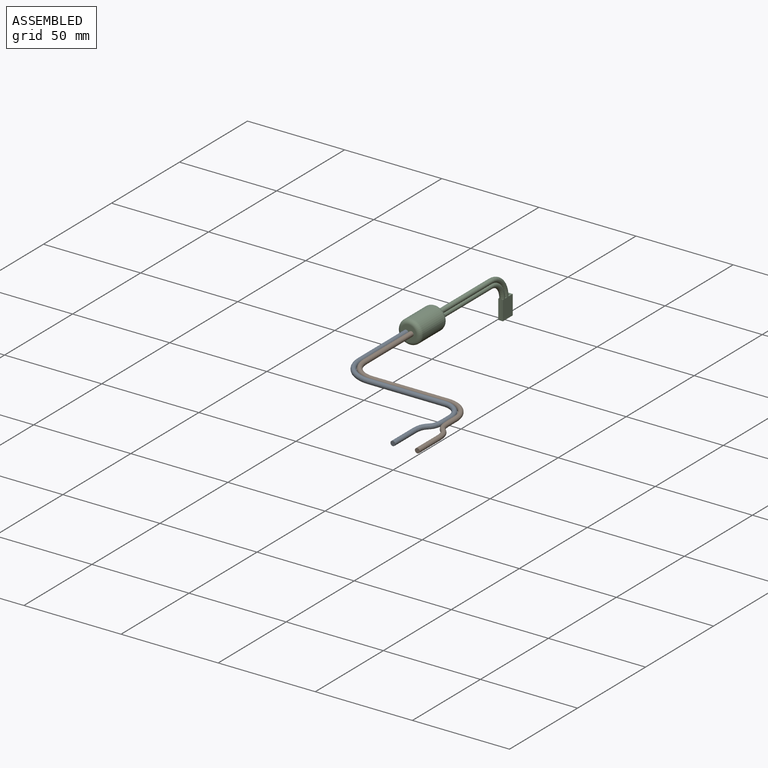
[diagram: assembled view]
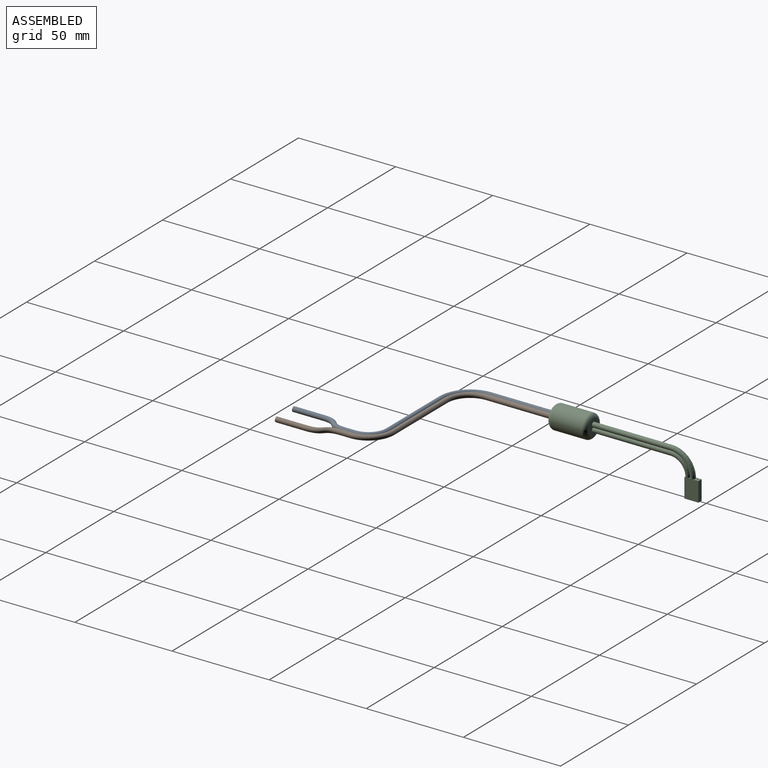
[diagram: assembled view, second angle]
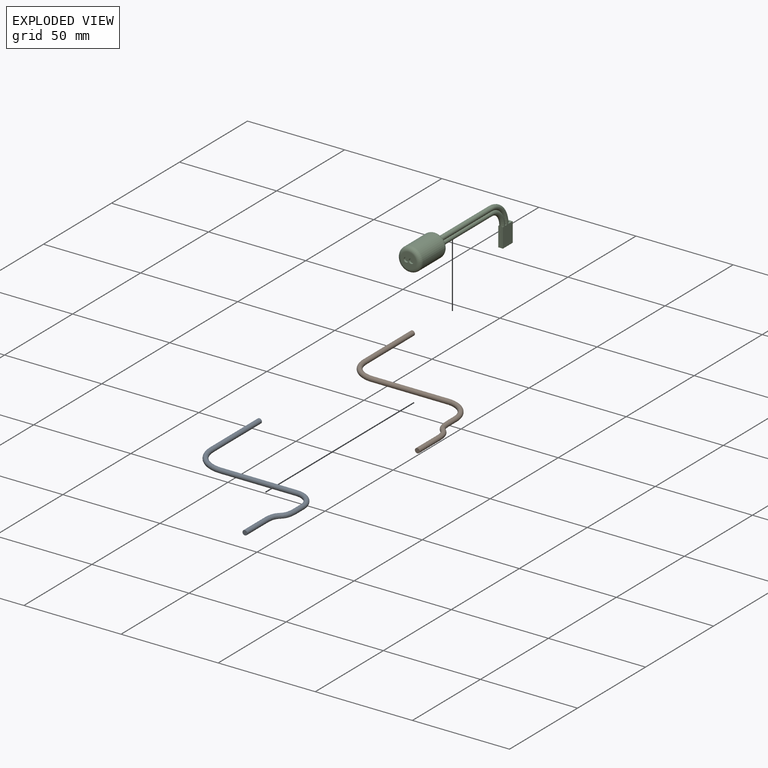
[diagram: exploded view]
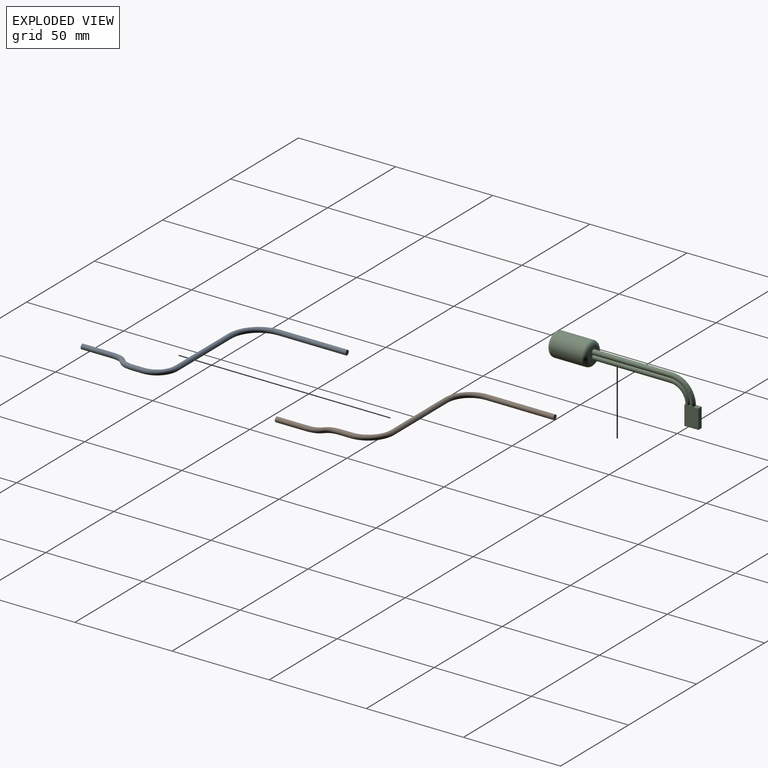
[diagram: exploded view, second angle]
ASSEMBLY  parts=3 mates=2
PART A: 9 faces, bbox 69.1x95x5.5 mm
  f0: plane 2.5x2.5mm, normal (0,1,0), area 4.9mm2, adj f2
  f1: plane 2.5x2.5mm, normal (0,-1,0), area 4.9mm2, adj f8
  f2: cylinder r=1.25mm len=35mm, axis (0,-1,0), area 274.9mm2, adj f0,f3
  f3: torus R=15mm, axis (0,0,1), area 185.1mm2, adj f2,f4
  f4: cylinder r=1.25mm len=39mm, axis (1,0,0), area 306.3mm2, adj f3,f5
  f5: torus R=10mm, axis (0,0,-1), area 123.4mm2, adj f4,f6
  f6: cylinder r=1.25mm len=5mm, axis (0,-1,0), area 39.3mm2, adj f5,f7
  f7: bspline ~15x10.11mm, area 128.4mm2, adj f6,f8
  f8: cylinder r=1.25mm len=15mm, axis (0,-1,0), area 117.8mm2, adj f1,f7
PART B: 9 faces, bbox 72.8x95x5.1 mm
  f0: plane 2.5x2.5mm, normal (0,1,0), area 4.9mm2, adj f2
  f1: plane 2.5x2.5mm, normal (0,-1,0), area 4.9mm2, adj f8
  f2: cylinder r=1.25mm len=35mm, axis (0,-1,0), area 274.9mm2, adj f0,f3
  f3: torus R=12.4mm, axis (0,0,1), area 153mm2, adj f2,f4
  f4: cylinder r=1.25mm len=39mm, axis (1,0,0), area 306.3mm2, adj f3,f5
  f5: torus R=12.6mm, axis (0,0,-1), area 155.4mm2, adj f4,f6
  f6: cylinder r=1.25mm len=5mm, axis (0,-1,0), area 39.3mm2, adj f5,f7
  f7: bspline ~15x7.79mm, area 128.4mm2, adj f6,f8
  f8: cylinder r=1.25mm len=15mm, axis (0,-1,0), area 117.8mm2, adj f1,f7
PART C: 42 faces, bbox 13x74.8x26.5 mm
  f0: plane 0.7x0.05mm, normal (0,0,-1), area 0mm2, adj f11,f26
  f1: plane 0.7x0.05mm, normal (0,0,-1), area 0mm2, adj f10,f31
  f2: plane 0.7x0.05mm, normal (0,0,-1), area 0mm2, adj f11,f31
  f3: plane 0.7x0.05mm, normal (0,0,-1), area 0mm2, adj f10,f27
  f4: plane 0.7x0.05mm, normal (0,0,-1), area 0mm2, adj f11,f27
  f5: plane 8x8mm, normal (0,-1,0), area 40.4mm2, adj f36,f38,f40
  f6: cylinder r=6mm len=16mm, axis (0,1,0), area 603.2mm2, adj f36,f37
  f7: plane 8x8mm, normal (0,1,0), area 40.5mm2, adj f8,f9,f37
  f8: cylinder r=1.25mm len=40mm, axis (0,1,0), area 285.8mm2, adj f7,f9,f10
  f9: cylinder r=1.25mm len=40mm, axis (0,1,0), area 285.8mm2, adj f7,f8,f11
  f10: torus R=11.2mm, axis (-1,0,0), area 127.1mm2, adj f1,f3,f8,f11,f12,f13,f16
  f11: torus R=8.8mm, axis (-1,0,0), area 97.4mm2, adj f0,f2,f4,f9,f10,f13,f14,f15
  f12: plane 3.25x2.4mm, normal (0,0,1), area 5.8mm2, adj f10,f17,f18,f19,f27,f28,f31,f32
  f13: plane 1.7x0.85mm, normal (0,0,1), area 0.5mm2, adj f10,f11,f31
  f14: plane 0.85x0.85mm, normal (0,0,1), area 0.2mm2, adj f11,f26,f31
  f15: plane 0.85x0.85mm, normal (0,0,1), area 0.2mm2, adj f11,f26,f27
  f16: plane 1.7x0.85mm, normal (0,0,1), area 0.5mm2, adj f10,f11,f27
  f17: plane 10x0.6mm, normal (0,-1,0), area 6mm2, adj f12,f18,f32,f33
  f18: plane 10x0.6mm, normal (1,0,0), area 6mm2, adj f12,f17,f19,f33
  f19: plane 10x0.6mm, normal (0,1,0), area 6mm2, adj f12,f18,f32,f33
  f20: plane 10x0.6mm, normal (0,-1,0), area 6mm2, adj f21,f29,f33,f35
  f21: plane 10x0.6mm, normal (1,0,0), area 6mm2, adj f20,f22,f33,f35
  f22: plane 10x0.6mm, normal (0,1,0), area 6mm2, adj f21,f29,f33,f35
  f23: plane 10x0.6mm, normal (0,1,0), area 6mm2, adj f24,f30,f33,f34
  f24: plane 10x0.6mm, normal (-1,0,0), area 6mm2, adj f23,f25,f33,f34
  f25: plane 10x0.6mm, normal (0,-1,0), area 6mm2, adj f24,f30,f33,f34
  f26: plane 10x2.4mm, normal (0,-1,0), area 24mm2, adj f0,f14,f15,f27,f31,f33
  f27: plane 10x7.2mm, normal (-1,0,0), area 72mm2, adj f3,f4,f12,f15,f16,f26,f28,f33
  f28: plane 10x2.4mm, normal (0,1,0), area 24mm2, adj f12,f27,f31,f33
  f29: plane 10x0.6mm, normal (-1,0,0), area 6mm2, adj f20,f22,f33,f35
  f30: plane 10x0.6mm, normal (1,0,0), area 6mm2, adj f23,f25,f33,f34
  f31: plane 10x7.2mm, normal (1,0,0), area 72mm2, adj f1,f2,f12,f13,f14,f26,f28,f33
  f32: plane 10x0.6mm, normal (-1,0,0), area 6mm2, adj f12,f17,f19,f33
  f33: plane 7.2x2.4mm, normal (0,0,-1), area 16.2mm2, adj f17,f18,f19,f20,f21,f22,f23,f24
  f34: plane 0.6x0.6mm, normal (0,0,-1), area 0.4mm2, adj f23,f24,f25,f30
  f35: plane 0.6x0.6mm, normal (0,0,-1), area 0.4mm2, adj f20,f21,f22,f29
  f36: torus R=4mm, axis (0,1,0), area 104.1mm2, adj f5,f6
  f37: torus R=4mm, axis (0,1,0), area 104.1mm2, adj f6,f7
  f38: cylinder r=1.25mm len=2.5mm, axis (0,-1,0), area 7.9mm2, adj f5,f39
  f39: plane 2.5x2.5mm, normal (0,-1,0), area 4.9mm2, adj f38
  f40: cylinder r=1.25mm len=2.5mm, axis (0,-1,0), area 7.9mm2, adj f5,f41
  f41: plane 2.5x2.5mm, normal (0,-1,0), area 4.9mm2, adj f40
PLACE A t=(5.12,-3.44,-1.84)mm
PLACE B t=(5.12,-3.44,-1.84)mm
PLACE C t=(5.12,-4.44,-1.84)mm
MATE fastened A.f2 <-> C.f40  axis (0,-1,0) through (3.82,-23.44,-1.84)mm
MATE fastened C.f38 <-> B.f2  axis (0,-1,0) through (6.42,-23.44,-1.84)mm
